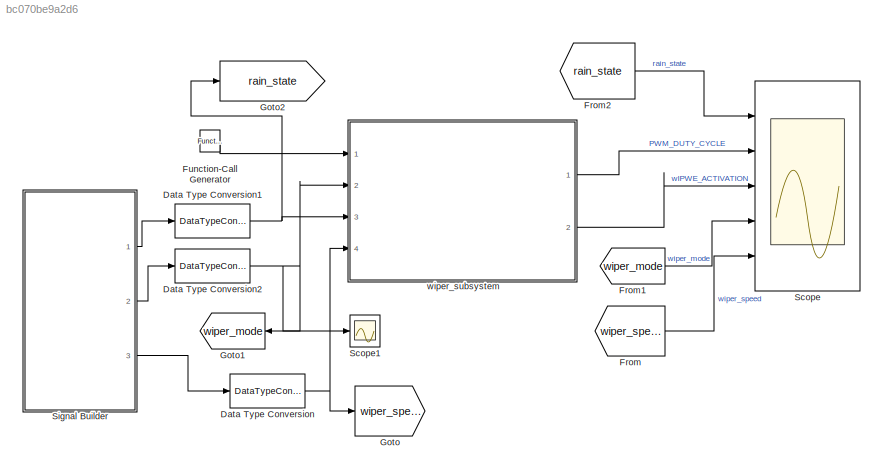
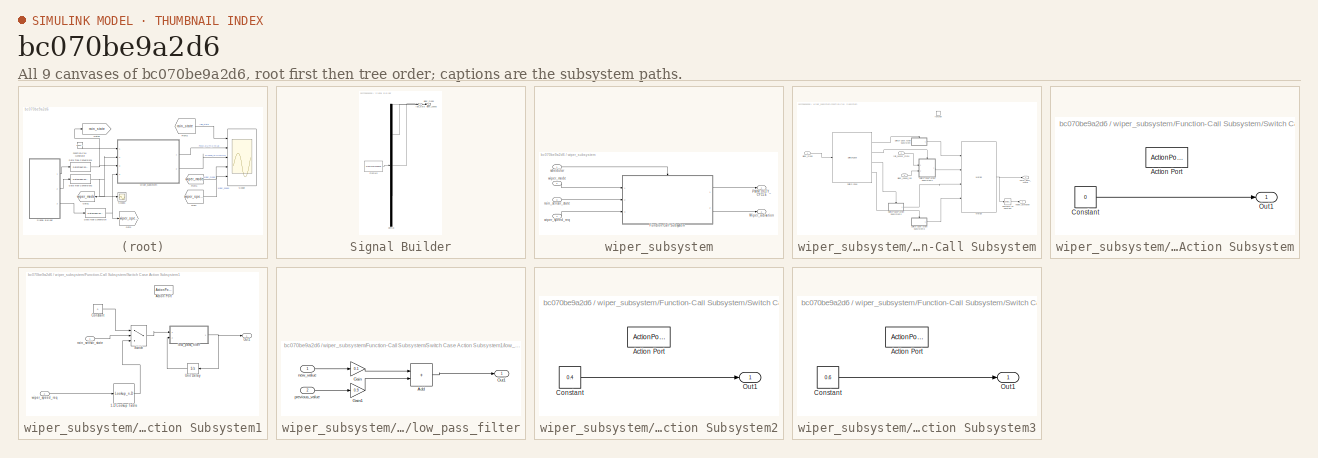
[diagram: thumbnail index - all 9 canvases of the model, root first then tree order]
MODEL slx_bc070be9a2d6
KIND model
CONFIG AbsTol = auto
CONFIG EnableMultiTasking = off
CONFIG FixedStep = 0.01
CONFIG MaxStep = auto
CONFIG MinStep = auto
CONFIG RelTol = 1e-3
CONFIG SampleTimeConstraint = Unconstrained
CONFIG SolverName = FixedStepAuto
CONFIG StartTime = 0.0
CONFIG StopTime = 20
WORKSPACE source: mxarray member
WORKSPACE Sig: Simulink.Signal (value not decoded)
WORKSPACE x_data_table: Simulink.Parameter (value not decoded)
WORKSPACE y_data_table: Simulink.Parameter (value not decoded)
BLOCK [DataTypeConversion] Data Type Conversion
  NameLocation = top
  RndMeth = Floor
  SaturateOnIntegerOverflow = off
BLOCK [DataTypeConversion] Data Type Conversion1
  RndMeth = Floor
  SaturateOnIntegerOverflow = off
BLOCK [DataTypeConversion] Data Type Conversion2
  RndMeth = Floor
  SaturateOnIntegerOverflow = off
BLOCK [From] From
  GotoTag = wiper_speed
BLOCK [From] From1
  GotoTag = wiper_mode
BLOCK [From] From2
  GotoTag = rain_state
BLOCK [Reference] Function-Call Generator  REF=simulink/Ports &
Subsystems/Function-Call
Generator
  Ports = [0, 1]
  SourceBlock = simulink/Ports &\nSubsystems/Function-Call\nGenerator
  SourceProductBaseCode = SL
  SourceType = Function-Call Generator
BLOCK [Goto] Goto
  GotoTag = wiper_speed
BLOCK [Goto] Goto1
  GotoTag = wiper_mode
  NameLocation = top
BLOCK [Goto] Goto2
  GotoTag = rain_state
BLOCK [Scope] Scope
  Floating = off
  NumInputPorts = 5
  Ports = [5]
  ScopeSpecificationString = Simulink.scopes.TimeScopeBlockCfg('CurrentConfiguration', extmgr.ConfigurationSet(extmgr.Configuration('Core','General UI',true),extmgr.Configuration('Core','Source UI',true),extmgr.Configuration('Sources','WiredSimulink',true),extmgr.Configuration('Visuals','Time Domain',true,'SerializedDisplays',{struct('MinYLimReal','-0.125','MaxYLimReal','1.125','YLabelReal','','MinYLimMag','0.00000','MaxYLimM...<+6185ch>
BLOCK [Scope] Scope1
  Floating = off
  NumInputPorts = 1
  Ports = [1]
  ScopeSpecificationString = Simulink.scopes.TimeScopeBlockCfg('CurrentConfiguration', extmgr.ConfigurationSet(extmgr.Configuration('Core','General UI',true),extmgr.Configuration('Core','Source UI',true),extmgr.Configuration('Sources','WiredSimulink',true,'DataLoggingVariableName','ScopeData1'),extmgr.Configuration('Visuals','Time Domain',true,'SerializedDisplays',{struct('MinYLimReal','-0.375','MaxYLimReal','3.375','YLabelRe...<+1397ch>
BLOCK [SubSystem] Signal Builder
  ClipboardFcn = sigbuilder_block('clipboard');
  CloseFcn = sigbuilder_block('close');
  ContinueFcn = sigbuilder_block('continue');
  CopyFcn = sigbuilder_block('copy');
  DeleteFcn = sigbuilder_block('delete');
  LoadFcn = sigbuilder_block('load');
  MaskHideContents = on
  ModelCloseFcn = sigbuilder_block('modelClose');
  NameChangeFcn = sigbuilder_block('namechange');
  OpenFcn = sigbuilder_block('open',[5.4 30 1141.2 522.6 ]);
  PauseFcn = sigbuilder_block('pause');
  Ports = [0, 3]
  PreSaveFcn = sigbuilder_block('preSave');
  RequestExecContextInheritance = off
  StartFcn = sigbuilder_block('start');
  StopFcn = sigbuilder_block('stop');
  Tag = STV Subsys
BLOCK [Demux] Signal Builder/Demux
  DisplayOption = none
  Outputs = 3
  Ports = [1, 3]
  Tag = STV Demux
BLOCK [FromWorkspace] Signal Builder/FromWs
  Tag = STV FromWs
  VariableName = tuvar
BLOCK [Outport] Signal Builder/rain_state
  Tag = STV Outport
BLOCK [Outport] Signal Builder/wiper_mode
  Port = 2
  Tag = STV Outport
BLOCK [Outport] Signal Builder/wiper_speed
  Port = 3
  Tag = STV Outport
BLOCK [SubSystem] wiper_subsystem
  Ports = [4, 2]
  RequestExecContextInheritance = off
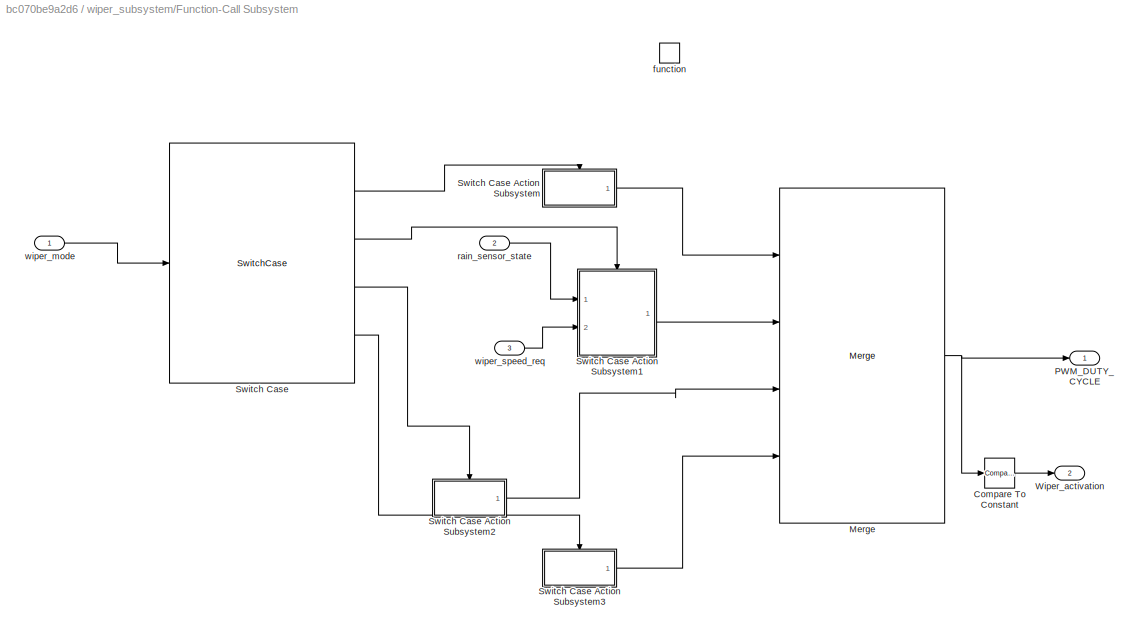
BLOCK [SubSystem] wiper_subsystem/Function-Call Subsystem
  Ports = [3, 2, 0, 1]
  RequestExecContextInheritance = off
  TreatAsAtomicUnit = on
BLOCK [Reference] wiper_subsystem/Function-Call Subsystem/Compare To Constant  REF=simulink/Logic and Bit
Operations/Compare
To Constant
  Ports = [1, 1]
  SourceBlock = simulink/Logic and Bit\nOperations/Compare\nTo Constant
  SourceProductBaseCode = SL
  SourceType = Compare To Constant
BLOCK [Merge] wiper_subsystem/Function-Call Subsystem/Merge
  Inputs = 4
  Ports = [4, 1]
BLOCK [Outport] wiper_subsystem/Function-Call Subsystem/PWM_DUTY_CYCLE
BLOCK [SwitchCase] wiper_subsystem/Function-Call Subsystem/Switch Case
  CaseConditions = {0,1,2,3}
  Ports = [1, 4]
  ShowDefaultCase = off
BLOCK [SubSystem] wiper_subsystem/Function-Call Subsystem/Switch Case Action Subsystem
  Ports = [0, 1, 0, 0, 0, 0, 0, 1]
  RequestExecContextInheritance = off
  TreatAsAtomicUnit = on
BLOCK [ActionPort] wiper_subsystem/Function-Call Subsystem/Switch Case Action Subsystem/Action Port
  ActionPortLabel = case [ 0 ]:
BLOCK [Constant] wiper_subsystem/Function-Call Subsystem/Switch Case Action Subsystem/Constant
  OutDataTypeStr = single
  Value = 0
BLOCK [Outport] wiper_subsystem/Function-Call Subsystem/Switch Case Action Subsystem/Out1
  OutDataTypeStr = single
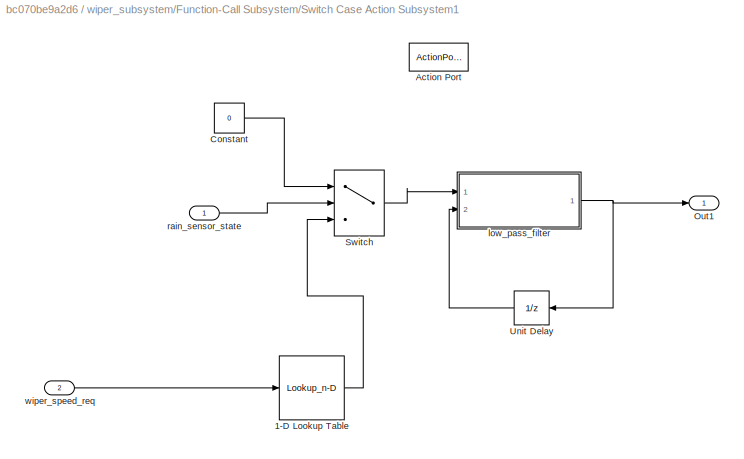
BLOCK [SubSystem] wiper_subsystem/Function-Call Subsystem/Switch Case Action Subsystem1
  Ports = [2, 1, 0, 0, 0, 0, 0, 1]
  RequestExecContextInheritance = off
  TreatAsAtomicUnit = on
BLOCK [Lookup_n-D] wiper_subsystem/Function-Call Subsystem/Switch Case Action Subsystem1/1-D Lookup Table
  BreakpointsForDimension1 = x_data_table
  InputPortMap = u0
  InternalRulePriority = Speed
  InterpMethod = Nearest
  NumberOfTableDimensions = 1
  OutDataTypeStr = single
  Ports = [1, 1]
  RndMeth = Simplest
  Table = y_data_table
  TableDataTypeStr = single
BLOCK [ActionPort] wiper_subsystem/Function-Call Subsystem/Switch Case Action Subsystem1/Action Port
  ActionPortLabel = case [ 1 ]:
BLOCK [Constant] wiper_subsystem/Function-Call Subsystem/Switch Case Action Subsystem1/Constant
  OutDataTypeStr = single
  Value = 0
BLOCK [Outport] wiper_subsystem/Function-Call Subsystem/Switch Case Action Subsystem1/Out1
  OutDataTypeStr = single
BLOCK [Switch] wiper_subsystem/Function-Call Subsystem/Switch Case Action Subsystem1/Switch
  Criteria = u2 > Threshold
  InputSameDT = off
  SaturateOnIntegerOverflow = off
BLOCK [UnitDelay] wiper_subsystem/Function-Call Subsystem/Switch Case Action Subsystem1/Unit Delay
  HasFrameUpgradeWarning = on
  NameLocation = top
  SampleTime = -1
BLOCK [SubSystem] wiper_subsystem/Function-Call Subsystem/Switch Case Action Subsystem1/low_pass_filter
  Ports = [2, 1]
  RequestExecContextInheritance = off
BLOCK [Sum] wiper_subsystem/Function-Call Subsystem/Switch Case Action Subsystem1/low_pass_filter/Add
  AccumDataTypeStr = single
  IconShape = rectangular
  OutDataTypeStr = single
  Ports = [2, 1]
BLOCK [Gain] wiper_subsystem/Function-Call Subsystem/Switch Case Action Subsystem1/low_pass_filter/Gain
  Gain = 0.1
  OutDataTypeStr = single
  ParamDataTypeStr = single
BLOCK [Gain] wiper_subsystem/Function-Call Subsystem/Switch Case Action Subsystem1/low_pass_filter/Gain1
  Gain = 0.9
BLOCK [Outport] wiper_subsystem/Function-Call Subsystem/Switch Case Action Subsystem1/low_pass_filter/Out1
  OutDataTypeStr = single
BLOCK [Inport] wiper_subsystem/Function-Call Subsystem/Switch Case Action Subsystem1/low_pass_filter/new_value
  OutDataTypeStr = single
BLOCK [Inport] wiper_subsystem/Function-Call Subsystem/Switch Case Action Subsystem1/low_pass_filter/previous_value
  Port = 2
BLOCK [Inport] wiper_subsystem/Function-Call Subsystem/Switch Case Action Subsystem1/rain_sensor_state
  OutDataTypeStr = boolean
BLOCK [Inport] wiper_subsystem/Function-Call Subsystem/Switch Case Action Subsystem1/wiper_speed_req
  Port = 2
BLOCK [SubSystem] wiper_subsystem/Function-Call Subsystem/Switch Case Action Subsystem2
  Ports = [0, 1, 0, 0, 0, 0, 0, 1]
  RequestExecContextInheritance = off
  TreatAsAtomicUnit = on
BLOCK [ActionPort] wiper_subsystem/Function-Call Subsystem/Switch Case Action Subsystem2/Action Port
  ActionPortLabel = case [ 2 ]:
BLOCK [Constant] wiper_subsystem/Function-Call Subsystem/Switch Case Action Subsystem2/Constant
  OutDataTypeStr = single
  Value = 0.4
BLOCK [Outport] wiper_subsystem/Function-Call Subsystem/Switch Case Action Subsystem2/Out1
  OutDataTypeStr = single
BLOCK [SubSystem] wiper_subsystem/Function-Call Subsystem/Switch Case Action Subsystem3
  Ports = [0, 1, 0, 0, 0, 0, 0, 1]
  RequestExecContextInheritance = off
  TreatAsAtomicUnit = on
BLOCK [ActionPort] wiper_subsystem/Function-Call Subsystem/Switch Case Action Subsystem3/Action Port
  ActionPortLabel = case [ 3 ]:
BLOCK [Constant] wiper_subsystem/Function-Call Subsystem/Switch Case Action Subsystem3/Constant
  OutDataTypeStr = single
  Value = 0.6
BLOCK [Outport] wiper_subsystem/Function-Call Subsystem/Switch Case Action Subsystem3/Out1
  OutDataTypeStr = single
BLOCK [Outport] wiper_subsystem/Function-Call Subsystem/Wiper_activation
  Port = 2
BLOCK [TriggerPort] wiper_subsystem/Function-Call Subsystem/function
  Ports = []
  StatesWhenEnabling = held
  TriggerType = function-call
  VariantControl = (inherit)
BLOCK [Inport] wiper_subsystem/Function-Call Subsystem/rain_sensor_state
  OutDataTypeStr = boolean
  Port = 2
BLOCK [Inport] wiper_subsystem/Function-Call Subsystem/wiper_mode
  OutDataTypeStr = uint16
BLOCK [Inport] wiper_subsystem/Function-Call Subsystem/wiper_speed_req
  Port = 3
BLOCK [Outport] wiper_subsystem/PWM_DUTY_CYCLE
  OutDataTypeStr = single
BLOCK [Outport] wiper_subsystem/Wiper_activation
  OutDataTypeStr = boolean
  Port = 2
BLOCK [Inport] wiper_subsystem/rain_sensor_state
  OutDataTypeStr = boolean
  Port = 3
BLOCK [Inport] wiper_subsystem/schedular
BLOCK [Inport] wiper_subsystem/wiper_mode
  OutDataTypeStr = uint16
  Port = 2
BLOCK [Inport] wiper_subsystem/wiper_speed_req
  OutDataTypeStr = uint8
  Port = 4
NET Data Type Conversion1:1 -> Goto2:1, wiper_subsystem:3
NET Data Type Conversion2:1 -> Goto1:1, Scope1:1, wiper_subsystem:2
NET Data Type Conversion:1 -> Goto:1, wiper_subsystem:4
LINE From1:1 -> Scope:4
LINE From2:1 -> Scope:1
LINE From:1 -> Scope:5
LINE Function-Call Generator:1 -> wiper_subsystem:1
LINE Signal Builder:1 -> Data Type Conversion1:1
LINE Signal Builder:2 -> Data Type Conversion2:1
LINE Signal Builder:3 -> Data Type Conversion:1
LINE wiper_subsystem/Function-Call Subsystem/Compare To Constant:1 -> wiper_subsystem/Function-Call Subsystem/Wiper_activation:1
NET wiper_subsystem/Function-Call Subsystem/Merge:1 -> wiper_subsystem/Function-Call Subsystem/Compare To Constant:1, wiper_subsystem/Function-Call Subsystem/PWM_DUTY_CYCLE:1
LINE wiper_subsystem/Function-Call Subsystem/Switch Case Action Subsystem/Constant:1 -> wiper_subsystem/Function-Call Subsystem/Switch Case Action Subsystem/Out1:1
LINE wiper_subsystem/Function-Call Subsystem/Switch Case Action Subsystem1/1-D Lookup Table:1 -> wiper_subsystem/Function-Call Subsystem/Switch Case Action Subsystem1/Switch:3
LINE wiper_subsystem/Function-Call Subsystem/Switch Case Action Subsystem1/Constant:1 -> wiper_subsystem/Function-Call Subsystem/Switch Case Action Subsystem1/Switch:1
LINE wiper_subsystem/Function-Call Subsystem/Switch Case Action Subsystem1/Switch:1 -> wiper_subsystem/Function-Call Subsystem/Switch Case Action Subsystem1/low_pass_filter:1
LINE wiper_subsystem/Function-Call Subsystem/Switch Case Action Subsystem1/Unit Delay:1 -> wiper_subsystem/Function-Call Subsystem/Switch Case Action Subsystem1/low_pass_filter:2
LINE wiper_subsystem/Function-Call Subsystem/Switch Case Action Subsystem1/low_pass_filter/Add:1 -> wiper_subsystem/Function-Call Subsystem/Switch Case Action Subsystem1/low_pass_filter/Out1:1
LINE wiper_subsystem/Function-Call Subsystem/Switch Case Action Subsystem1/low_pass_filter/Gain1:1 -> wiper_subsystem/Function-Call Subsystem/Switch Case Action Subsystem1/low_pass_filter/Add:2
LINE wiper_subsystem/Function-Call Subsystem/Switch Case Action Subsystem1/low_pass_filter/Gain:1 -> wiper_subsystem/Function-Call Subsystem/Switch Case Action Subsystem1/low_pass_filter/Add:1
LINE wiper_subsystem/Function-Call Subsystem/Switch Case Action Subsystem1/low_pass_filter/new_value:1 -> wiper_subsystem/Function-Call Subsystem/Switch Case Action Subsystem1/low_pass_filter/Gain:1
LINE wiper_subsystem/Function-Call Subsystem/Switch Case Action Subsystem1/low_pass_filter/previous_value:1 -> wiper_subsystem/Function-Call Subsystem/Switch Case Action Subsystem1/low_pass_filter/Gain1:1
NET wiper_subsystem/Function-Call Subsystem/Switch Case Action Subsystem1/low_pass_filter:1 -> wiper_subsystem/Function-Call Subsystem/Switch Case Action Subsystem1/Out1:1, wiper_subsystem/Function-Call Subsystem/Switch Case Action Subsystem1/Unit Delay:1
LINE wiper_subsystem/Function-Call Subsystem/Switch Case Action Subsystem1/rain_sensor_state:1 -> wiper_subsystem/Function-Call Subsystem/Switch Case Action Subsystem1/Switch:2
LINE wiper_subsystem/Function-Call Subsystem/Switch Case Action Subsystem1/wiper_speed_req:1 -> wiper_subsystem/Function-Call Subsystem/Switch Case Action Subsystem1/1-D Lookup Table:1
LINE wiper_subsystem/Function-Call Subsystem/Switch Case Action Subsystem1:1 -> wiper_subsystem/Function-Call Subsystem/Merge:2
LINE wiper_subsystem/Function-Call Subsystem/Switch Case Action Subsystem2/Constant:1 -> wiper_subsystem/Function-Call Subsystem/Switch Case Action Subsystem2/Out1:1
LINE wiper_subsystem/Function-Call Subsystem/Switch Case Action Subsystem2:1 -> wiper_subsystem/Function-Call Subsystem/Merge:3
LINE wiper_subsystem/Function-Call Subsystem/Switch Case Action Subsystem3/Constant:1 -> wiper_subsystem/Function-Call Subsystem/Switch Case Action Subsystem3/Out1:1
LINE wiper_subsystem/Function-Call Subsystem/Switch Case Action Subsystem3:1 -> wiper_subsystem/Function-Call Subsystem/Merge:4
LINE wiper_subsystem/Function-Call Subsystem/Switch Case Action Subsystem:1 -> wiper_subsystem/Function-Call Subsystem/Merge:1
LINE wiper_subsystem/Function-Call Subsystem/Switch Case:1 -> wiper_subsystem/Function-Call Subsystem/Switch Case Action Subsystem:ifaction
LINE wiper_subsystem/Function-Call Subsystem/Switch Case:2 -> wiper_subsystem/Function-Call Subsystem/Switch Case Action Subsystem1:ifaction
LINE wiper_subsystem/Function-Call Subsystem/Switch Case:3 -> wiper_subsystem/Function-Call Subsystem/Switch Case Action Subsystem2:ifaction
LINE wiper_subsystem/Function-Call Subsystem/Switch Case:4 -> wiper_subsystem/Function-Call Subsystem/Switch Case Action Subsystem3:ifaction
LINE wiper_subsystem/Function-Call Subsystem/rain_sensor_state:1 -> wiper_subsystem/Function-Call Subsystem/Switch Case Action Subsystem1:1
LINE wiper_subsystem/Function-Call Subsystem/wiper_mode:1 -> wiper_subsystem/Function-Call Subsystem/Switch Case:1
LINE wiper_subsystem/Function-Call Subsystem/wiper_speed_req:1 -> wiper_subsystem/Function-Call Subsystem/Switch Case Action Subsystem1:2
LINE wiper_subsystem/Function-Call Subsystem:1 -> wiper_subsystem/PWM_DUTY_CYCLE:1
LINE wiper_subsystem/Function-Call Subsystem:2 -> wiper_subsystem/Wiper_activation:1
LINE wiper_subsystem/rain_sensor_state:1 -> wiper_subsystem/Function-Call Subsystem:2
LINE wiper_subsystem/schedular:1 -> wiper_subsystem/Function-Call Subsystem:trigger
LINE wiper_subsystem/wiper_mode:1 -> wiper_subsystem/Function-Call Subsystem:1
LINE wiper_subsystem/wiper_speed_req:1 -> wiper_subsystem/Function-Call Subsystem:3
LINE wiper_subsystem:1 -> Scope:2
LINE wiper_subsystem:2 -> Scope:3
note: NET lines group one-source signal fan-out (src -> all destinations, sorted); 1:1 wires keep LINE
